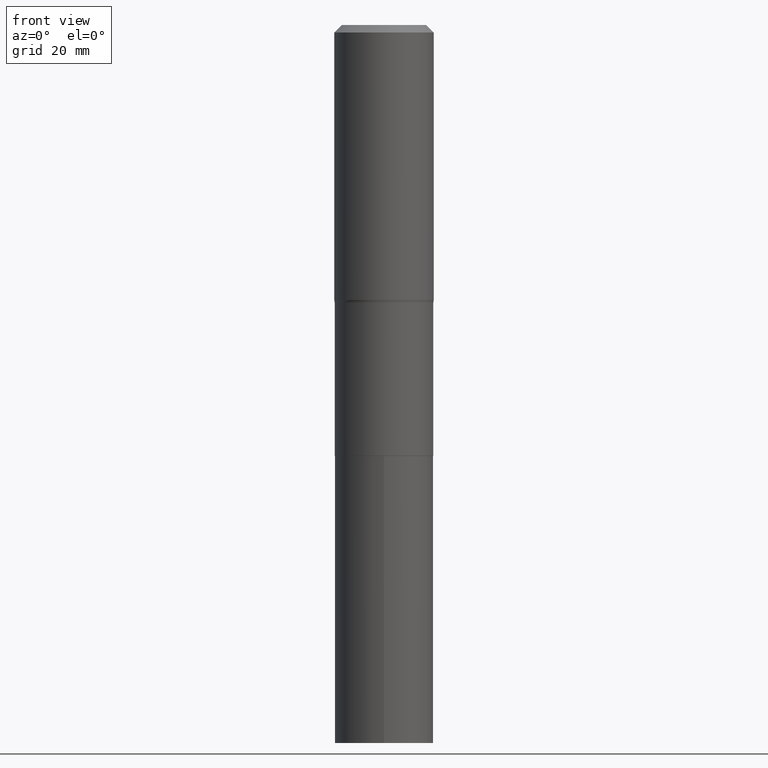
[diagram: clean part render]
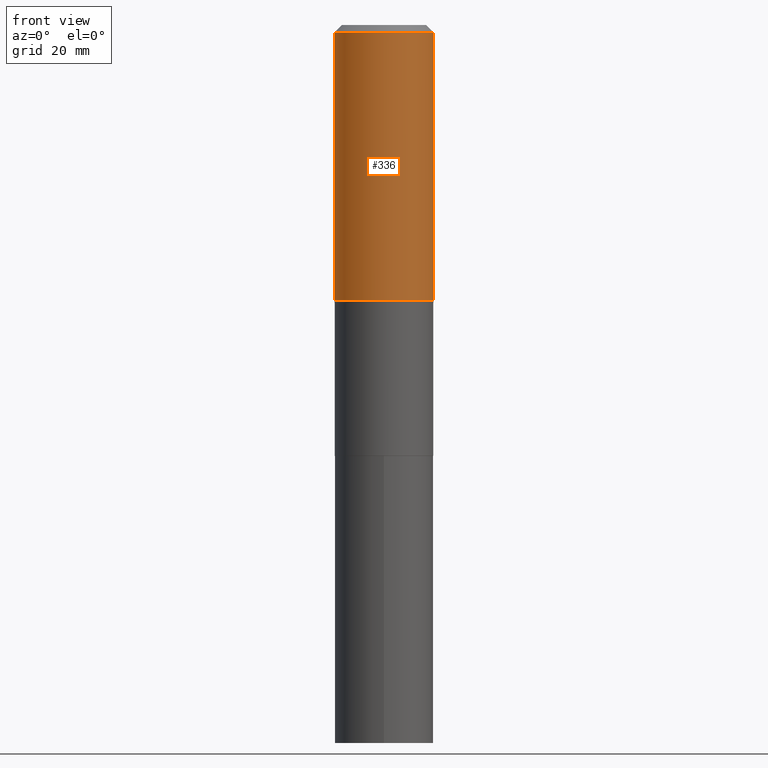
[diagram: same view with one face highlighted and labeled with its STEP entity id]
A machine part, front view. The second image highlights one B-rep face of the part: STEP entity #336.
In plain terms, the highlighted cylindrical surface (partial cylindrical patch) has radius 9.0005 mm, axis along (-0, 0, 1).
Its self-contained STEP definition (entity closure, byte-faithful):
#17 = EDGE_CURVE ( 'NONE', #414, #430, #403, .T. ) ;
#20 = CARTESIAN_POINT ( 'NONE',  ( -0.3543500000000002759, -4.327659991680637196E-15, -1.960620009532889618 ) ) ;
#24 = CARTESIAN_POINT ( 'NONE',  ( 0.000000000000000000, 0.000000000000000000, 0.000000000000000000 ) ) ;
#26 = DIRECTION ( 'NONE',  ( 1.000000000000000000, -6.982962677686265922E-15, 4.876176775795935793E-29 ) ) ;
#28 = EDGE_LOOP ( 'NONE', ( #293, #369, #226, #110 ) ) ;
#56 = VECTOR ( 'NONE', #97, 39.37007874015748143 ) ;
#57 = AXIS2_PLACEMENT_3D ( 'NONE', #441, #405, #437 ) ;
#97 = DIRECTION ( 'NONE',  ( -2.445468806185136877E-29, 3.491481338843145188E-15, 1.000000000000000000 ) ) ;
#101 = DIRECTION ( 'NONE',  ( 1.000000000000000000, -6.982962677686266711E-15, 0.000000000000000000 ) ) ;
#110 = ORIENTED_EDGE ( 'NONE', *, *, #263, .F. ) ;
#174 = DIRECTION ( 'NONE',  ( -2.445468806185136597E-29, 3.491481338843145583E-15, 1.000000000000000000 ) ) ;
#207 = CYLINDRICAL_SURFACE ( 'NONE', #463, 0.3543500000000001648 ) ;
#226 = ORIENTED_EDGE ( 'NONE', *, *, #364, .T. ) ;
#239 = FACE_OUTER_BOUND ( 'NONE', #28, .T. ) ;
#243 = CIRCLE ( 'NONE', #370, 0.3543500000000000538 ) ;
#244 = DIRECTION ( 'NONE',  ( -2.445468806185136597E-29, 3.491481338843145583E-15, 1.000000000000000000 ) ) ;
#258 = EDGE_CURVE ( 'NONE', #414, #298, #283, .T. ) ;
#263 = EDGE_CURVE ( 'NONE', #298, #311, #243, .T. ) ;
#264 = LINE ( 'NONE', #319, #56 ) ;
#272 = CARTESIAN_POINT ( 'NONE',  ( 0.3543500000000000538, -2.659993786700990959E-15, -0.05315250000000042163 ) ) ;
#274 = DIRECTION ( 'NONE',  ( -2.445468806185136877E-29, 3.491481338843145188E-15, 1.000000000000000000 ) ) ;
#283 = LINE ( 'NONE', #390, #402 ) ;
#293 = ORIENTED_EDGE ( 'NONE', *, *, #258, .F. ) ;
#298 = VERTEX_POINT ( 'NONE', #388 ) ;
#311 = VERTEX_POINT ( 'NONE', #272 ) ;
#318 = CARTESIAN_POINT ( 'NONE',  ( 0.3543500000000002759, -9.319881000684684831E-15, -1.960620009532889618 ) ) ;
#319 = CARTESIAN_POINT ( 'NONE',  ( 0.3543500000000001648, -2.474412824838129483E-15, 1.727873240503290590E-29 ) ) ;
#336 = ADVANCED_FACE ( 'NONE', ( #239 ), #207, .T. ) ;
#364 = EDGE_CURVE ( 'NONE', #430, #311, #264, .T. ) ;
#369 = ORIENTED_EDGE ( 'NONE', *, *, #17, .T. ) ;
#370 = AXIS2_PLACEMENT_3D ( 'NONE', #422, #244, #101 ) ;
#388 = CARTESIAN_POINT ( 'NONE',  ( -0.3543500000000000538, -9.977163846887918380E-16, -0.05315250000000042163 ) ) ;
#390 = CARTESIAN_POINT ( 'NONE',  ( -0.3543500000000001648, 2.517808184165916180E-15, -1.743024649231826627E-29 ) ) ;
#402 = VECTOR ( 'NONE', #274, 39.37007874015748143 ) ;
#403 = CIRCLE ( 'NONE', #57, 0.3543500000000002759 ) ;
#405 = DIRECTION ( 'NONE',  ( -2.445468806185136597E-29, 3.491481338843145583E-15, 1.000000000000000000 ) ) ;
#414 = VERTEX_POINT ( 'NONE', #20 ) ;
#422 = CARTESIAN_POINT ( 'NONE',  ( 1.299827807207564898E-30, -1.855809618628617475E-16, -0.05315250000000042163 ) ) ;
#430 = VERTEX_POINT ( 'NONE', #318 ) ;
#437 = DIRECTION ( 'NONE',  ( 1.000000000000000000, -6.982962677686268288E-15, 0.000000000000000000 ) ) ;
#441 = CARTESIAN_POINT ( 'NONE',  ( 4.794635074095086779E-29, -6.845468175846554165E-15, -1.960620009532889618 ) ) ;
#463 = AXIS2_PLACEMENT_3D ( 'NONE', #24, #174, #26 ) ;